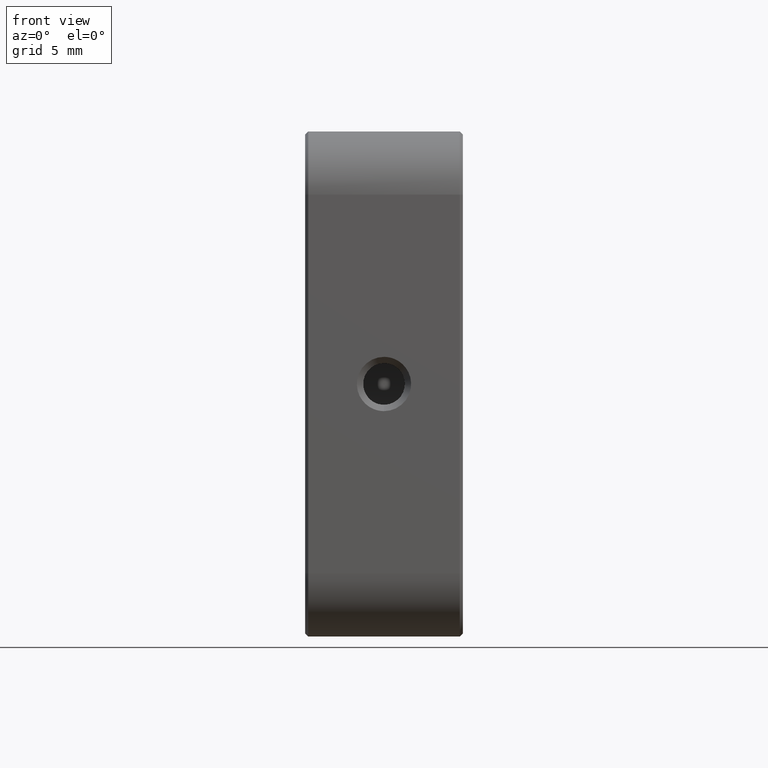
[diagram: clean part render]
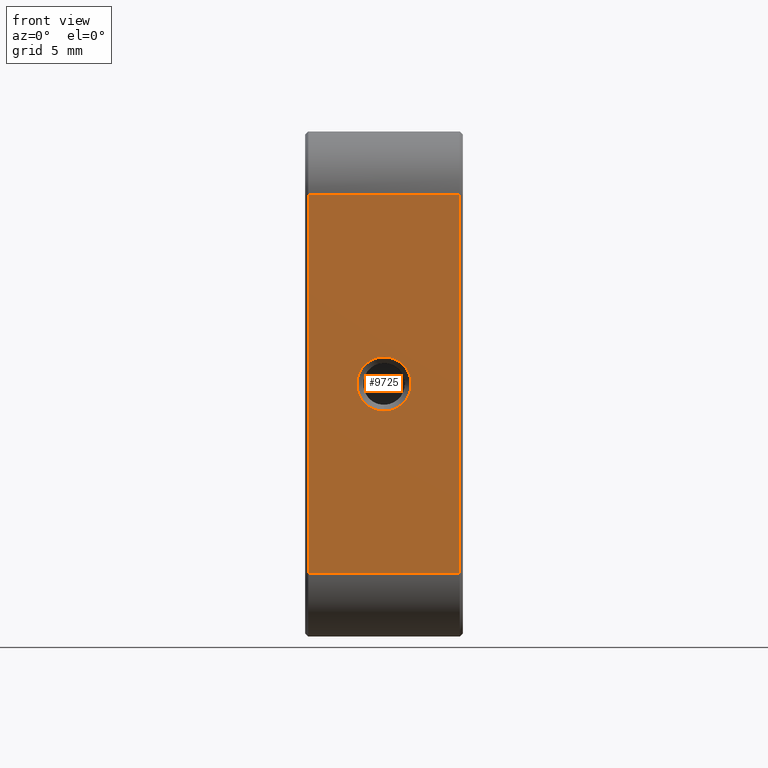
[diagram: same view with one face highlighted and labeled with its STEP entity id]
A machine part, front view. The second image highlights one B-rep face of the part: STEP entity #9725.
In plain terms, the highlighted face is a freeform B-spline surface patch.
Its self-contained STEP definition (entity closure, byte-faithful):
#180 = CARTESIAN_POINT ( 'NONE',  ( -14.70960063692993991, -17.89069877659090224, 37.85000000000000142 ) ) ;
#428 = CARTESIAN_POINT ( 'NONE',  ( -8.709600636929948791, -17.89069877659090224, 25.00000000000000000 ) ) ;
#671 = CARTESIAN_POINT ( 'NONE',  ( -20.70960063692990261, -17.89069877659090224, 55.00000000000000000 ) ) ;
#1073 = B_SPLINE_CURVE_WITH_KNOTS ( 'NONE', 1,
 ( #428, #6867 ),
 .UNSPECIFIED., .F., .F.,
 ( 2, 2 ),
 ( 0.000000000000000000, 1.000000000000000000 ),
 .UNSPECIFIED. ) ;
#1242 =( BOUNDED_CURVE ( )  B_SPLINE_CURVE ( 3, ( #9105, #10904, #3718, #7300 ),
 .UNSPECIFIED., .F., .F. ) 
 B_SPLINE_CURVE_WITH_KNOTS ( ( 4, 4 ),
 ( 0.000000000000000000, 1.000000000000000000 ),
 .UNSPECIFIED. ) 
 CURVE ( )  GEOMETRIC_REPRESENTATION_ITEM ( )  RATIONAL_B_SPLINE_CURVE ( ( 1.000000000000000000, 0.3333333333333330373, 0.3333333333333330373, 1.000000000000000000 ) ) 
 REPRESENTATION_ITEM ( '' )  );
#1403 = CARTESIAN_POINT ( 'NONE',  ( -19.00960063692998503, -17.89069877659088448, 42.14999999999994884 ) ) ;
#1446 = FACE_OUTER_BOUND ( 'NONE', #7195, .T. ) ;
#1576 = EDGE_CURVE ( 'NONE', #11335, #8573, #1242, .T. ) ;
#1627 = ORIENTED_EDGE ( 'NONE', *, *, #6394, .F. ) ;
#1679 = ORIENTED_EDGE ( 'NONE', *, *, #6142, .F. ) ;
#1883 = ORIENTED_EDGE ( 'NONE', *, *, #1576, .F. ) ;
#1886 = CARTESIAN_POINT ( 'NONE',  ( -14.70960063692993991, -17.89069877659090224, 37.85000000000000142 ) ) ;
#2851 = CARTESIAN_POINT ( 'NONE',  ( -8.709600636929948791, -17.89069877659090224, 55.00000000000000000 ) ) ;
#3077 = B_SPLINE_CURVE_WITH_KNOTS ( 'NONE', 1,
 ( #5433, #5373 ),
 .UNSPECIFIED., .F., .F.,
 ( 2, 2 ),
 ( 0.000000000000000000, 1.000000000000000000 ),
 .UNSPECIFIED. ) ;
#3509 = EDGE_CURVE ( 'NONE', #9943, #4570, #3607, .T. ) ;
#3607 = B_SPLINE_CURVE_WITH_KNOTS ( 'NONE', 1,
 ( #11058, #3653 ),
 .UNSPECIFIED., .F., .F.,
 ( 2, 2 ),
 ( 0.000000000000000000, 1.000000000000000000 ),
 .UNSPECIFIED. ) ;
#3653 = CARTESIAN_POINT ( 'NONE',  ( -8.709600636929948791, -17.89069877659090224, 25.00000000000000000 ) ) ;
#3718 = CARTESIAN_POINT ( 'NONE',  ( -10.40960063693000137, -17.89069877659088448, 42.14999999999994884 ) ) ;
#4312 = CARTESIAN_POINT ( 'NONE',  ( -20.70960063692990261, -17.89069877659090224, 25.00000000000000000 ) ) ;
#4570 = VERTEX_POINT ( 'NONE', #10365 ) ;
#4661 = ORIENTED_EDGE ( 'NONE', *, *, #4994, .F. ) ;
#4940 = EDGE_LOOP ( 'NONE', ( #1627, #1883 ) ) ;
#4994 = EDGE_CURVE ( 'NONE', #10232, #9943, #9209, .T. ) ;
#5043 = CARTESIAN_POINT ( 'NONE',  ( -19.00960063692998503, -17.89069877659088448, 37.85000000000002984 ) ) ;
#5373 = CARTESIAN_POINT ( 'NONE',  ( -20.70960063692990261, -17.89069877659090224, 55.00000000000000000 ) ) ;
#5433 = CARTESIAN_POINT ( 'NONE',  ( -20.70960063692990261, -17.89069877659090224, 25.00000000000000000 ) ) ;
#5540 = CARTESIAN_POINT ( 'NONE',  ( -20.70960063692990261, -17.89069877659090224, 25.00000000000000000 ) ) ;
#6142 = EDGE_CURVE ( 'NONE', #7409, #10232, #3077, .T. ) ;
#6240 = ORIENTED_EDGE ( 'NONE', *, *, #3509, .F. ) ;
#6394 = EDGE_CURVE ( 'NONE', #8573, #11335, #10013, .T. ) ;
#6440 = CARTESIAN_POINT ( 'NONE',  ( -20.70960063692990261, -17.89069877659090224, 55.00000000000000000 ) ) ;
#6569 = CARTESIAN_POINT ( 'NONE',  ( -8.709600636929948791, -17.89069877659090224, 55.00000000000000000 ) ) ;
#6695 = B_SPLINE_SURFACE_WITH_KNOTS ( 'NONE', 1, 1, ( 
 ( #9633, #7834 ),
 ( #671, #4312 ) ),
 .UNSPECIFIED., .F., .F., .F.,
 ( 2, 2 ),
 ( 2, 2 ),
 ( 0.000000000000000000, 1.000000000000000000 ),
 ( 0.000000000000000000, 1.000000000000000000 ),
 .UNSPECIFIED. ) ;
#6867 = CARTESIAN_POINT ( 'NONE',  ( -20.70960063692990261, -17.89069877659090224, 25.00000000000000000 ) ) ;
#7000 = EDGE_CURVE ( 'NONE', #4570, #7409, #1073, .T. ) ;
#7195 = EDGE_LOOP ( 'NONE', ( #1679, #9276, #6240, #4661 ) ) ;
#7300 = CARTESIAN_POINT ( 'NONE',  ( -14.70960063692993991, -17.89069877659090224, 42.14999999999999858 ) ) ;
#7409 = VERTEX_POINT ( 'NONE', #5540 ) ;
#7834 = CARTESIAN_POINT ( 'NONE',  ( -8.709600636929948791, -17.89069877659090224, 25.00000000000000000 ) ) ;
#8297 = CARTESIAN_POINT ( 'NONE',  ( -20.70960063692990261, -17.89069877659090224, 55.00000000000000000 ) ) ;
#8573 = VERTEX_POINT ( 'NONE', #9109 ) ;
#8858 = FACE_BOUND ( 'NONE', #4940, .T. ) ;
#9105 = CARTESIAN_POINT ( 'NONE',  ( -14.70960063692993991, -17.89069877659090224, 37.85000000000000142 ) ) ;
#9109 = CARTESIAN_POINT ( 'NONE',  ( -14.70960063692993991, -17.89069877659090224, 42.14999999999999858 ) ) ;
#9209 = B_SPLINE_CURVE_WITH_KNOTS ( 'NONE', 1,
 ( #6440, #2851 ),
 .UNSPECIFIED., .F., .F.,
 ( 2, 2 ),
 ( 0.000000000000000000, 1.000000000000000000 ),
 .UNSPECIFIED. ) ;
#9276 = ORIENTED_EDGE ( 'NONE', *, *, #7000, .F. ) ;
#9588 = CARTESIAN_POINT ( 'NONE',  ( -14.70960063692993991, -17.89069877659090224, 42.14999999999999858 ) ) ;
#9633 = CARTESIAN_POINT ( 'NONE',  ( -8.709600636929948791, -17.89069877659090224, 55.00000000000000000 ) ) ;
#9725 = ADVANCED_FACE ( 'NONE', ( #8858, #1446 ), #6695, .T. ) ;
#9943 = VERTEX_POINT ( 'NONE', #6569 ) ;
#10013 =( BOUNDED_CURVE ( )  B_SPLINE_CURVE ( 3, ( #9588, #1403, #5043, #1886 ),
 .UNSPECIFIED., .F., .F. ) 
 B_SPLINE_CURVE_WITH_KNOTS ( ( 4, 4 ),
 ( 0.000000000000000000, 1.000000000000000000 ),
 .UNSPECIFIED. ) 
 CURVE ( )  GEOMETRIC_REPRESENTATION_ITEM ( )  RATIONAL_B_SPLINE_CURVE ( ( 1.000000000000000000, 0.3333333333333330373, 0.3333333333333330373, 1.000000000000000000 ) ) 
 REPRESENTATION_ITEM ( '' )  );
#10232 = VERTEX_POINT ( 'NONE', #8297 ) ;
#10365 = CARTESIAN_POINT ( 'NONE',  ( -8.709600636929948791, -17.89069877659090224, 25.00000000000000000 ) ) ;
#10904 = CARTESIAN_POINT ( 'NONE',  ( -10.40960063692990545, -17.89069877659088448, 37.85000000000002984 ) ) ;
#11058 = CARTESIAN_POINT ( 'NONE',  ( -8.709600636929948791, -17.89069877659090224, 55.00000000000000000 ) ) ;
#11335 = VERTEX_POINT ( 'NONE', #180 ) ;